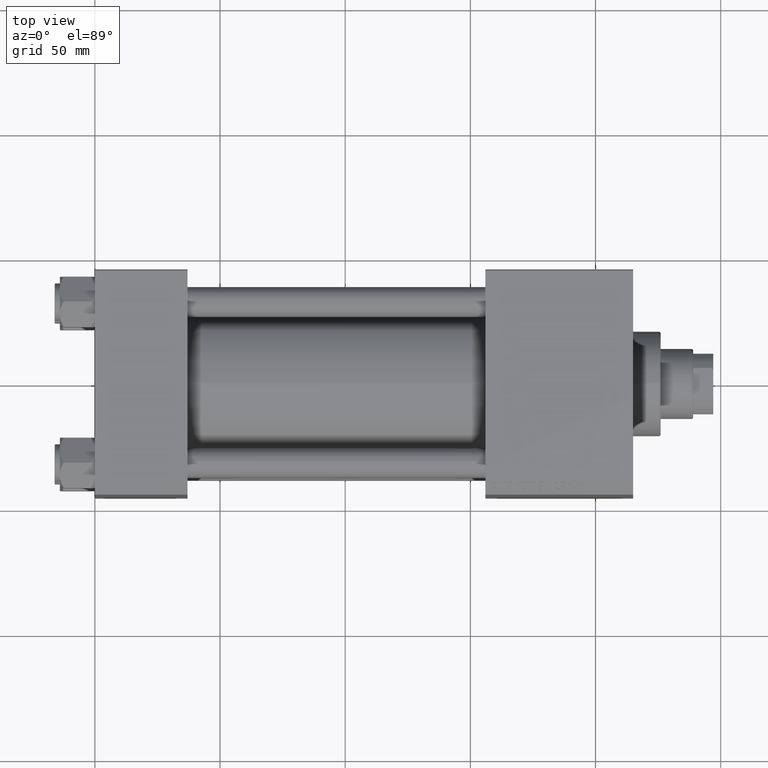
[diagram: clean part render]
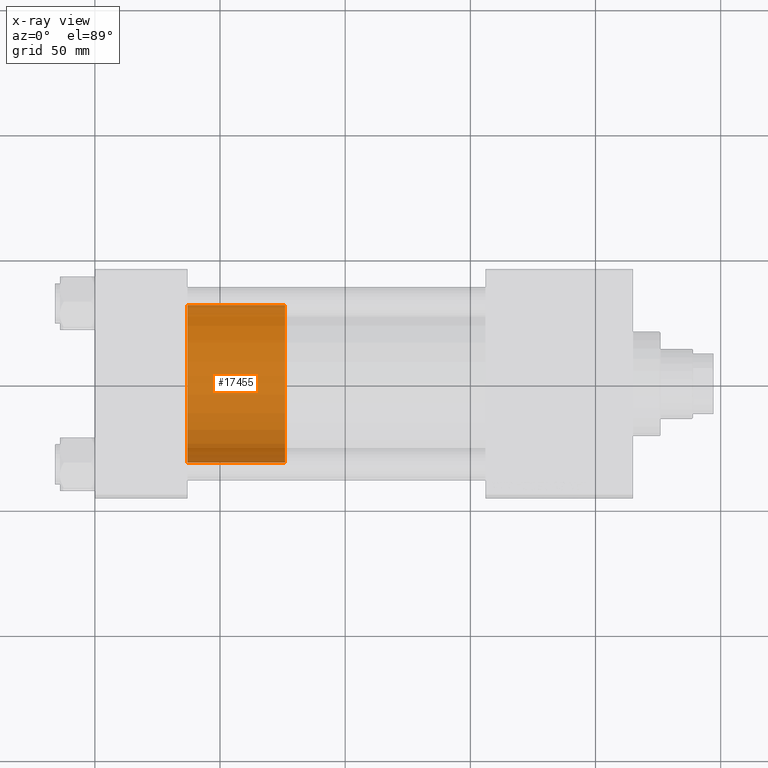
[diagram: x-ray — body ghosted, one internal face saturated and labeled with its STEP entity id]
A machine part, top view, then the same camera in x-ray: the body is ghosted and one INTERNAL B-rep face — a face not visible from any outside direction — is saturated and labeled: STEP entity #17455.
In plain terms, the highlighted cylindrical surface (partial cylindrical patch) has radius 31.5 mm, axis along (-1, 0, 0).
Its self-contained STEP definition (entity closure, byte-faithful):
#797 = AXIS2_PLACEMENT_3D ( 'NONE', #37830, #48539, #21845 ) ;
#1567 = EDGE_CURVE ( 'NONE', #7159, #48375, #32149, .T. ) ;
#3645 = DIRECTION ( 'NONE',  ( 1.000000000000000000, 0.000000000000000000, 0.000000000000000000 ) ) ;
#6731 = CARTESIAN_POINT ( 'NONE',  ( 0.000000000000000000, 0.000000000000000000, 0.000000000000000000 ) ) ;
#6739 = EDGE_CURVE ( 'NONE', #26933, #7159, #10599, .T. ) ;
#7159 = VERTEX_POINT ( 'NONE', #16300 ) ;
#9050 = CIRCLE ( 'NONE', #40676, 31.50000000000000000 ) ;
#10454 = CARTESIAN_POINT ( 'NONE',  ( -31.50000000000000000, 0.000000000000000000, 39.00000000000000000 ) ) ;
#10599 = LINE ( 'NONE', #11337, #11922 ) ;
#11337 = CARTESIAN_POINT ( 'NONE',  ( 31.50000000000000000, 3.857637417314162689E-15, 39.00000000000000000 ) ) ;
#11922 = VECTOR ( 'NONE', #49704, 1000.000000000000000 ) ;
#14734 = FACE_OUTER_BOUND ( 'NONE', #50110, .T. ) ;
#15656 = CARTESIAN_POINT ( 'NONE',  ( 31.50000000000000000, 3.857637417314162689E-15, 39.00000000000000000 ) ) ;
#15901 = ORIENTED_EDGE ( 'NONE', *, *, #1567, .T. ) ;
#16300 = CARTESIAN_POINT ( 'NONE',  ( 31.50000000000000000, 3.857637417314162689E-15, 0.000000000000000000 ) ) ;
#17455 = ADVANCED_FACE ( 'NONE', ( #14734 ), #25914, .T. ) ;
#17583 = DIRECTION ( 'NONE',  ( -0.000000000000000000, -0.000000000000000000, -1.000000000000000000 ) ) ;
#18078 = CARTESIAN_POINT ( 'NONE',  ( 0.000000000000000000, 0.000000000000000000, 39.00000000000000000 ) ) ;
#20817 = EDGE_CURVE ( 'NONE', #26933, #49282, #9050, .T. ) ;
#21609 = AXIS2_PLACEMENT_3D ( 'NONE', #6731, #37696, #3645 ) ;
#21845 = DIRECTION ( 'NONE',  ( -1.000000000000000000, 0.000000000000000000, 0.000000000000000000 ) ) ;
#25914 = CYLINDRICAL_SURFACE ( 'NONE', #797, 31.50000000000000000 ) ;
#26933 = VERTEX_POINT ( 'NONE', #15656 ) ;
#28062 = EDGE_CURVE ( 'NONE', #49282, #48375, #40935, .T. ) ;
#31804 = CARTESIAN_POINT ( 'NONE',  ( -31.50000000000000000, 0.000000000000000000, 0.000000000000000000 ) ) ;
#32149 = CIRCLE ( 'NONE', #21609, 31.50000000000000000 ) ;
#33570 = DIRECTION ( 'NONE',  ( 1.000000000000000000, 0.000000000000000000, 0.000000000000000000 ) ) ;
#34720 = VECTOR ( 'NONE', #17583, 1000.000000000000000 ) ;
#36582 = ORIENTED_EDGE ( 'NONE', *, *, #28062, .F. ) ;
#37363 = ORIENTED_EDGE ( 'NONE', *, *, #6739, .T. ) ;
#37696 = DIRECTION ( 'NONE',  ( 0.000000000000000000, 0.000000000000000000, 1.000000000000000000 ) ) ;
#37830 = CARTESIAN_POINT ( 'NONE',  ( 0.000000000000000000, 0.000000000000000000, 39.00000000000000000 ) ) ;
#38214 = CARTESIAN_POINT ( 'NONE',  ( -31.50000000000000000, 0.000000000000000000, 39.00000000000000000 ) ) ;
#40676 = AXIS2_PLACEMENT_3D ( 'NONE', #18078, #44499, #33570 ) ;
#40935 = LINE ( 'NONE', #10454, #34720 ) ;
#42362 = ORIENTED_EDGE ( 'NONE', *, *, #20817, .F. ) ;
#44499 = DIRECTION ( 'NONE',  ( 0.000000000000000000, 0.000000000000000000, 1.000000000000000000 ) ) ;
#48375 = VERTEX_POINT ( 'NONE', #31804 ) ;
#48539 = DIRECTION ( 'NONE',  ( -0.000000000000000000, -0.000000000000000000, -1.000000000000000000 ) ) ;
#49282 = VERTEX_POINT ( 'NONE', #38214 ) ;
#49704 = DIRECTION ( 'NONE',  ( -0.000000000000000000, -0.000000000000000000, -1.000000000000000000 ) ) ;
#50110 = EDGE_LOOP ( 'NONE', ( #42362, #37363, #15901, #36582 ) ) ;